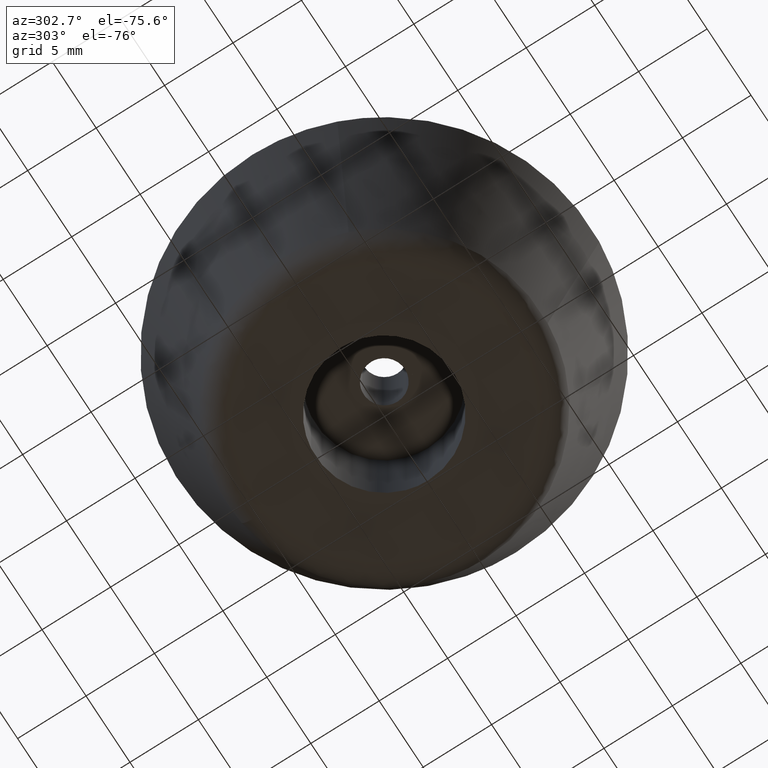
[diagram: clean part render]
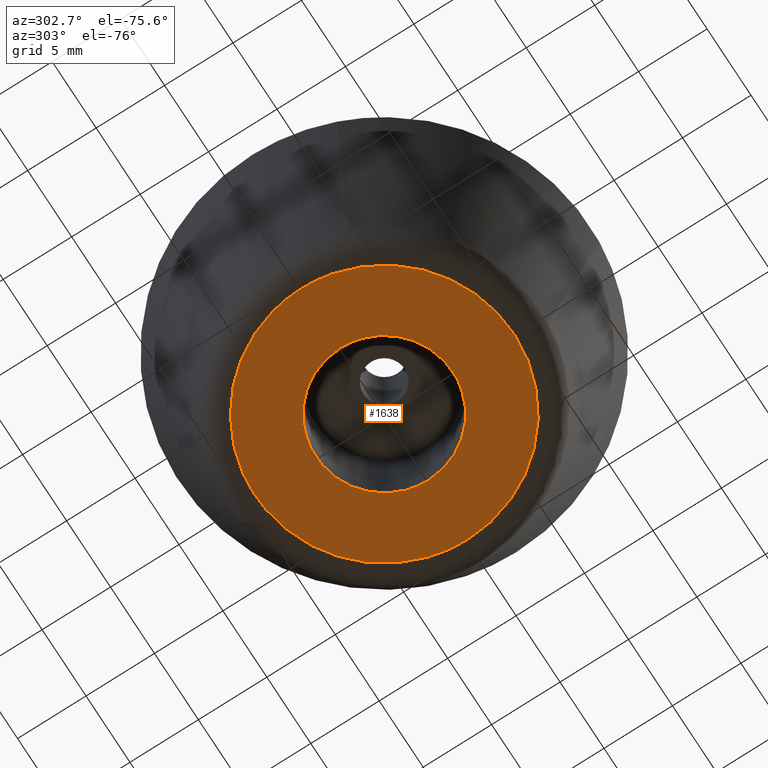
[diagram: same view with one face highlighted and labeled with its STEP entity id]
A machine part, auxiliary view. The second image highlights one B-rep face of the part: STEP entity #1638.
In plain terms, the highlighted face is a freeform B-spline surface patch.
Its self-contained STEP definition (entity closure, byte-faithful):
#519=CARTESIAN_POINT('',(-0.590171173301907,4.965047631816178,5.820828E-016));
#520=VERTEX_POINT('',#519);
#521=CARTESIAN_POINT('',(5.0,0.0,0.0));
#522=VERTEX_POINT('',#521);
#523=CARTESIAN_POINT('',(-0.590171173301907,4.965047631816178,5.820828E-016));
#524=CARTESIAN_POINT('',(-0.296120598277857,5.0,0.0));
#525=CARTESIAN_POINT('',(0.0,5.0,0.0));
#526=CARTESIAN_POINT('',(5.000000000000001,5.000000000000001,0.0));
#527=CARTESIAN_POINT('',(5.0,0.0,0.0));
#535=(BOUNDED_CURVE()B_SPLINE_CURVE(2,(#523,#524,#525,#526,#527),.UNSPECIFIED.,.F.,.U.)B_SPLINE_CURVE_WITH_KNOTS((3,2,3),(0.229562473514411,0.250000000000000,0.500000000000000),.UNSPECIFIED.)CURVE()GEOMETRIC_REPRESENTATION_ITEM()RATIONAL_B_SPLINE_CURVE((0.956026754185469,0.976055948332203,1.0,0.707106781186548,1.0))REPRESENTATION_ITEM(''));
#536=EDGE_CURVE('',#520,#522,#535,.T.);
#538=CARTESIAN_POINT('',(0.305242697700494,-4.990673992107731,-3.469447E-016));
#539=VERTEX_POINT('',#538);
#540=CARTESIAN_POINT('',(5.0,0.0,0.0));
#541=CARTESIAN_POINT('',(4.999999999999999,-4.703530334478959,0.0));
#542=CARTESIAN_POINT('',(0.305242697700494,-4.990673992107731,-3.469447E-016));
#550=(BOUNDED_CURVE()B_SPLINE_CURVE(2,(#540,#541,#542),.UNSPECIFIED.,.F.,.U.)B_SPLINE_CURVE_WITH_KNOTS((3,3),(0.500000000000000,0.739332962240155),.UNSPECIFIED.)CURVE()GEOMETRIC_REPRESENTATION_ITEM()RATIONAL_B_SPLINE_CURVE((1.0,0.719603993285290,0.976072041669316))REPRESENTATION_ITEM(''));
#551=EDGE_CURVE('',#522,#539,#550,.T.);
#622=CARTESIAN_POINT('',(-5.0,0.0,0.0));
#623=VERTEX_POINT('',#622);
#624=CARTESIAN_POINT('',(-5.0,0.0,0.0));
#625=CARTESIAN_POINT('',(-5.0,4.440872629724203,0.0));
#626=CARTESIAN_POINT('',(-0.590171173301907,4.965047631816178,5.820828E-016));
#634=(BOUNDED_CURVE()B_SPLINE_CURVE(2,(#624,#625,#626),.UNSPECIFIED.,.F.,.U.)B_SPLINE_CURVE_WITH_KNOTS((3,3),(0.0,0.229562473514411),.UNSPECIFIED.)CURVE()GEOMETRIC_REPRESENTATION_ITEM()RATIONAL_B_SPLINE_CURVE((1.0,0.731050832854345,0.956026754185469))REPRESENTATION_ITEM(''));
#635=EDGE_CURVE('',#623,#520,#634,.T.);
#669=CARTESIAN_POINT('',(0.305242697700494,-4.990673992107731,-3.469447E-016));
#670=CARTESIAN_POINT('',(0.152763816519227,-5.000000000000001,0.0));
#671=CARTESIAN_POINT('',(0.0,-5.0,0.0));
#672=CARTESIAN_POINT('',(-5.000000000000001,-5.000000000000001,0.0));
#673=CARTESIAN_POINT('',(-5.0,0.0,0.0));
#681=(BOUNDED_CURVE()B_SPLINE_CURVE(2,(#669,#670,#671,#672,#673),.UNSPECIFIED.,.F.,.U.)B_SPLINE_CURVE_WITH_KNOTS((3,2,3),(0.739332962240156,0.750000000000000,1.0),.UNSPECIFIED.)CURVE()GEOMETRIC_REPRESENTATION_ITEM()RATIONAL_B_SPLINE_CURVE((0.976072041669318,0.987502787901259,1.0,0.707106781186548,1.0))REPRESENTATION_ITEM(''));
#682=EDGE_CURVE('',#539,#623,#681,.T.);
#1500=CARTESIAN_POINT('',(1.161434136675054,9.391902052839949,3.545680E-016));
#1501=VERTEX_POINT('',#1500);
#1502=CARTESIAN_POINT('',(9.463443000000000,0.0,0.0));
#1503=VERTEX_POINT('',#1502);
#1504=CARTESIAN_POINT('',(1.161434136675054,9.391902052839949,3.545680E-016));
#1505=CARTESIAN_POINT('',(9.463443000000000,8.365247766188748,0.0));
#1506=CARTESIAN_POINT('',(9.463443000000000,0.0,0.0));
#1514=(BOUNDED_CURVE()B_SPLINE_CURVE(2,(#1504,#1505,#1506),.UNSPECIFIED.,.F.,.U.)B_SPLINE_CURVE_WITH_KNOTS((3,3),(0.271236031906231,0.500000000000000),.UNSPECIFIED.)CURVE()GEOMETRIC_REPRESENTATION_ITEM()RATIONAL_B_SPLINE_CURVE((0.954467626944263,0.731986340145912,1.0))REPRESENTATION_ITEM(''));
#1515=EDGE_CURVE('',#1501,#1503,#1514,.T.);
#1535=CARTESIAN_POINT('',(-9.194981521801914,2.238094778029808,3.084375E-016));
#1536=VERTEX_POINT('',#1535);
#1550=CARTESIAN_POINT('',(-9.463443000000000,0.0,0.0));
#1551=VERTEX_POINT('',#1550);
#1552=CARTESIAN_POINT('',(-9.463443000000000,0.0,0.0));
#1553=CARTESIAN_POINT('',(-9.463443000000000,1.135148486718512,0.0));
#1554=CARTESIAN_POINT('',(-9.194981521801914,2.238094778029808,3.084375E-016));
#1562=(BOUNDED_CURVE()B_SPLINE_CURVE(2,(#1552,#1553,#1554),.UNSPECIFIED.,.F.,.U.)B_SPLINE_CURVE_WITH_KNOTS((3,3),(0.0,0.040401677694351),.UNSPECIFIED.)CURVE()GEOMETRIC_REPRESENTATION_ITEM()RATIONAL_B_SPLINE_CURVE((1.0,0.952666490298552,0.920631806221906))REPRESENTATION_ITEM(''));
#1563=EDGE_CURVE('',#1551,#1536,#1562,.T.);
#1565=CARTESIAN_POINT('',(9.463443000000000,0.0,0.0));
#1566=CARTESIAN_POINT('',(9.463443000000000,-9.463443000000000,0.0));
#1567=CARTESIAN_POINT('',(0.0,-9.463443000000000,0.0));
#1568=CARTESIAN_POINT('',(-9.463443000000000,-9.463443000000000,0.0));
#1569=CARTESIAN_POINT('',(-9.463443000000000,0.0,0.0));
#1577=(BOUNDED_CURVE()B_SPLINE_CURVE(2,(#1565,#1566,#1567,#1568,#1569),.UNSPECIFIED.,.F.,.U.)B_SPLINE_CURVE_WITH_KNOTS((3,2,3),(0.500000000000000,0.750000000000000,1.0),.UNSPECIFIED.)CURVE()GEOMETRIC_REPRESENTATION_ITEM()RATIONAL_B_SPLINE_CURVE((1.0,0.707106781186547,1.0,0.707106781186547,1.0))REPRESENTATION_ITEM(''));
#1578=EDGE_CURVE('',#1503,#1551,#1577,.T.);
#1600=CARTESIAN_POINT('',(-9.194981521801914,2.238094778029808,3.084375E-016));
#1601=CARTESIAN_POINT('',(-7.436303259014869,9.463443000000002,0.0));
#1602=CARTESIAN_POINT('',(0.0,9.463443000000000,0.0));
#1603=CARTESIAN_POINT('',(0.582920424967703,9.463443000000002,0.0));
#1604=CARTESIAN_POINT('',(1.161434136675053,9.391902052839949,3.545680E-016));
#1612=(BOUNDED_CURVE()B_SPLINE_CURVE(2,(#1600,#1601,#1602,#1603,#1604),.UNSPECIFIED.,.F.,.U.)B_SPLINE_CURVE_WITH_KNOTS((3,2,3),(0.040401677694351,0.250000000000000,0.271236031906231),.UNSPECIFIED.)CURVE()GEOMETRIC_REPRESENTATION_ITEM()RATIONAL_B_SPLINE_CURVE((0.920631806221906,0.754440290887996,1.0,0.975120441040636,0.954467626944263))REPRESENTATION_ITEM(''));
#1613=EDGE_CURVE('',#1536,#1501,#1612,.T.);
#1621=CARTESIAN_POINT('',(-10.408840741343960,-10.408721451037900,0.0));
#1622=CARTESIAN_POINT('',(10.408841418222149,-10.408721451037900,0.0));
#1623=CARTESIAN_POINT('',(-10.408840741343960,10.406333932973910,0.0));
#1624=CARTESIAN_POINT('',(10.408841418222149,10.406333932973910,0.0));
#1625=B_SPLINE_SURFACE_WITH_KNOTS('',1,1,((#1621,#1623),(#1622,#1624)),.UNSPECIFIED.,.F.,.F.,.U.,(2,2),(2,2),(0.0,20.817682159566100),(0.0,20.815055384011810),.UNSPECIFIED.);
#1626=ORIENTED_EDGE('',*,*,#1563,.T.);
#1627=ORIENTED_EDGE('',*,*,#1613,.T.);
#1628=ORIENTED_EDGE('',*,*,#1515,.T.);
#1629=ORIENTED_EDGE('',*,*,#1578,.T.);
#1630=EDGE_LOOP('',(#1626,#1627,#1628,#1629));
#1631=FACE_OUTER_BOUND('',#1630,.T.);
#1632=ORIENTED_EDGE('',*,*,#551,.F.);
#1633=ORIENTED_EDGE('',*,*,#536,.F.);
#1634=ORIENTED_EDGE('',*,*,#635,.F.);
#1635=ORIENTED_EDGE('',*,*,#682,.F.);
#1636=EDGE_LOOP('',(#1632,#1633,#1634,#1635));
#1637=FACE_BOUND('',#1636,.T.);
#1638=ADVANCED_FACE('',(#1631,#1637),#1625,.F.);